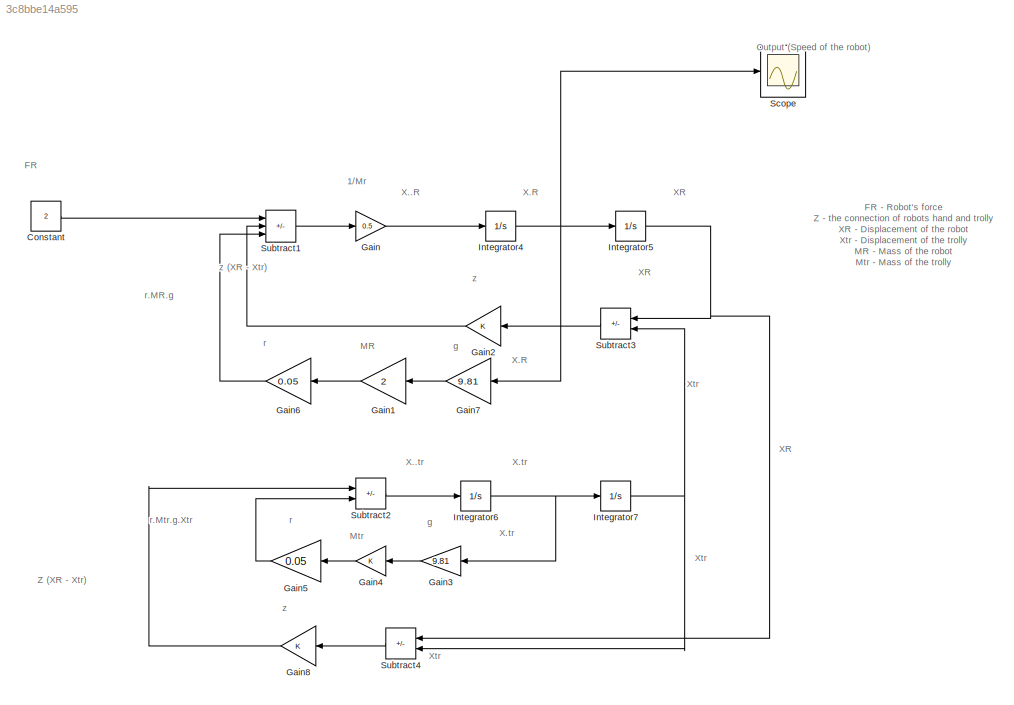
MODEL slx_3c8bbe14a595
KIND model
CONFIG AbsTol = auto
CONFIG EnableMultiTasking = off
CONFIG FixedStep = auto
CONFIG MaxStep = auto
CONFIG MinStep = auto
CONFIG RelTol = 1e-3
CONFIG SampleTimeConstraint = Unconstrained
CONFIG SolverName = VariableStepAuto
CONFIG StartTime = 0.0
CONFIG StopTime = 10.0
BLOCK [Constant] Constant
  Value = 2
BLOCK [Gain] Gain
  Gain = 0.5
BLOCK [Gain] Gain1
  Gain = 2
BLOCK [Gain] Gain2
BLOCK [Gain] Gain3
  Gain = 9.81
BLOCK [Gain] Gain4
BLOCK [Gain] Gain5
  Gain = 0.05
BLOCK [Gain] Gain6
  Gain = 0.05
BLOCK [Gain] Gain7
  Gain = 9.81
BLOCK [Gain] Gain8
BLOCK [Integrator] Integrator4
BLOCK [Integrator] Integrator5
BLOCK [Integrator] Integrator6
BLOCK [Integrator] Integrator7
BLOCK [Scope] Scope
  Floating = off
  NumInputPorts = 1
  ScopeSpecificationString = Simulink.scopes.TimeScopeBlockCfg('CurrentConfiguration', extmgr.ConfigurationSet(extmgr.Configuration('Core','General UI',true),extmgr.Configuration('Core','Source UI',true),extmgr.Configuration('Sources','WiredSimulink',true),extmgr.Configuration('Visuals','Time Domain',true,'SerializedDisplays',{struct('MinYLimReal','-0.17013','MaxYLimReal','1.53114','YLabelReal','','MinYLimMag','0.00000','MaxY...<+1386ch>
BLOCK [Sum] Subtract1
  IconShape = rectangular
  Inputs = +--
BLOCK [Sum] Subtract2
  IconShape = rectangular
  Inputs = +-
BLOCK [Sum] Subtract3
  IconShape = rectangular
  Inputs = +-
BLOCK [Sum] Subtract4
  IconShape = rectangular
  Inputs = +-
ANNOTATION (root): X .. tr
ANNOTATION (root): X . tr
ANNOTATION (root): X.. R
ANNOTATION (root): X. R
ANNOTATION (root): X R
ANNOTATION (root): Output (Speed of the robot)
ANNOTATION (root): 1/Mr
ANNOTATION (root): M R
ANNOTATION (root): X. tr
ANNOTATION (root): Xtr
ANNOTATION (root): F R
ANNOTATION (root): Z (X R - X tr )
ANNOTATION (root): g
ANNOTATION (root): z (X R - X tr )
ANNOTATION (root): F R - Robot's force Z - the connection of robots hand and trolly X R - Displacement of the robot X tr - Displacement of the trolly M R - Mass of the robot M tr - Mass of the trolly r - rollig friction cofficient g - Gravitation constant
ANNOTATION (root): M tr
ANNOTATION (root): r
ANNOTATION (root): z
ANNOTATION (root): r. M tr .g. Xtr
ANNOTATION (root): r. M R .g
LINE Constant:1 -> Subtract1:1
LINE Gain1:1 -> Gain6:1
LINE Gain2:1 -> Subtract1:2
LINE Gain3:1 -> Gain4:1
LINE Gain4:1 -> Gain5:1
LINE Gain5:1 -> Subtract2:2
LINE Gain6:1 -> Subtract1:3
LINE Gain7:1 -> Gain1:1
LINE Gain8:1 -> Subtract2:1
LINE Gain:1 -> Integrator4:1
NET Integrator4:1 -> Gain7:1, Integrator5:1, Scope:1
NET Integrator5:1 -> Subtract3:1, Subtract4:1
NET Integrator6:1 -> Gain3:1, Integrator7:1
NET Integrator7:1 -> Subtract3:2, Subtract4:2
LINE Subtract1:1 -> Gain:1
LINE Subtract2:1 -> Integrator6:1
LINE Subtract3:1 -> Gain2:1
LINE Subtract4:1 -> Gain8:1
note: NET lines group one-source signal fan-out (src -> all destinations, sorted); 1:1 wires keep LINE
